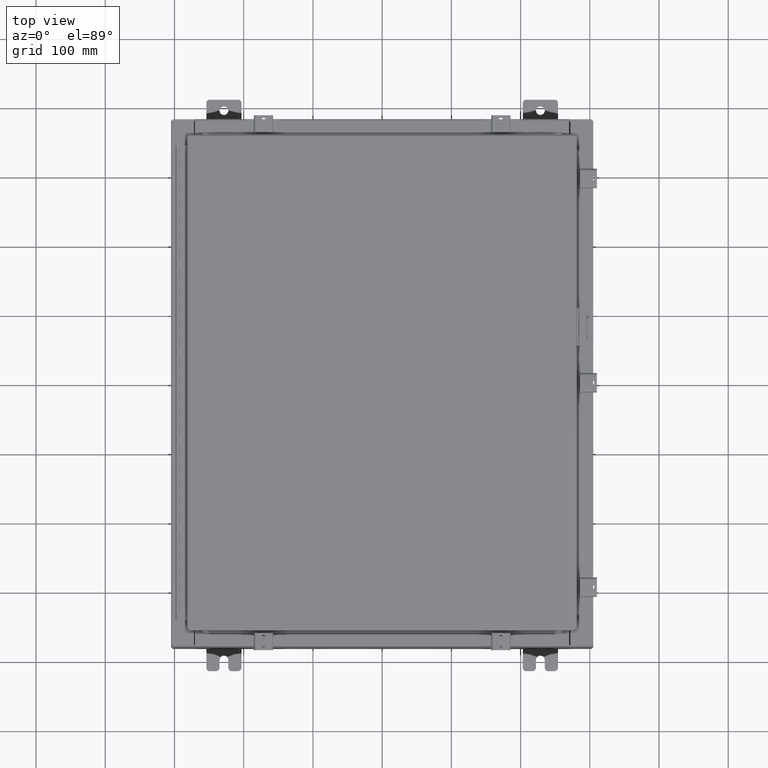
[diagram: clean part render]
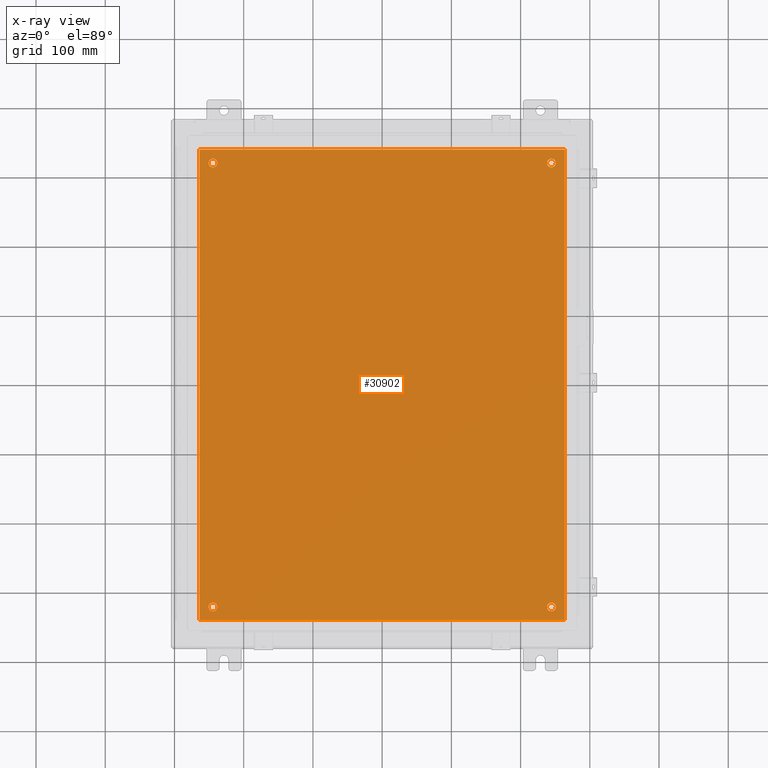
[diagram: x-ray — body ghosted, one internal face saturated and labeled with its STEP entity id]
A machine part, top view, then the same camera in x-ray: the body is ghosted and one INTERNAL B-rep face — a face not visible from any outside direction — is saturated and labeled: STEP entity #30902.
In plain terms, the highlighted planar face has unit normal (0, 0, -1).
Its self-contained STEP definition (entity closure, byte-faithful):
#769 = DIRECTION ( 'NONE',  ( -1.000000000000000000, 0.0000000000000000000, 0.0000000000000000000 ) ) ;
#984 = VERTEX_POINT ( 'NONE', #13189 ) ;
#1271 = PLANE ( 'NONE',  #29783 ) ;
#2091 = AXIS2_PLACEMENT_3D ( 'NONE', #26746, #9415, #29667 ) ;
#2192 = VERTEX_POINT ( 'NONE', #30154 ) ;
#2711 = CARTESIAN_POINT ( 'NONE',  ( 10.38300000000000100, -13.38299999999999700, -0.1040000000000009100 ) ) ;
#2748 = ORIENTED_EDGE ( 'NONE', *, *, #27197, .T. ) ;
#3415 = AXIS2_PLACEMENT_3D ( 'NONE', #6147, #26379, #9030 ) ;
#3819 = VECTOR ( 'NONE', #28766, 39.37007874015748100 ) ;
#3866 = AXIS2_PLACEMENT_3D ( 'NONE', #13264, #33515, #16166 ) ;
#4073 = VERTEX_POINT ( 'NONE', #13124 ) ;
#4169 = CARTESIAN_POINT ( 'NONE',  ( 0.0000000000000000000, 0.0000000000000000000, -0.1039999999999999800 ) ) ;
#4274 = FACE_BOUND ( 'NONE', #19895, .T. ) ;
#5562 = EDGE_CURVE ( 'NONE', #37059, #23015, #33004, .T. ) ;
#5786 = CARTESIAN_POINT ( 'NONE',  ( 9.875000000000007100, -12.62500000000000000, -0.1039999999999999800 ) ) ;
#6053 = VECTOR ( 'NONE', #8446, 39.37007874015748100 ) ;
#6147 = CARTESIAN_POINT ( 'NONE',  ( 9.625000000000007100, 12.62500000000000000, -0.1039999999999999800 ) ) ;
#6387 = CARTESIAN_POINT ( 'NONE',  ( -9.875000000000007100, 12.62500000000000000, -0.1039999999999999800 ) ) ;
#6684 = CIRCLE ( 'NONE', #29823, 0.2499999999999998100 ) ;
#6790 = VERTEX_POINT ( 'NONE', #5786 ) ;
#7066 = DIRECTION ( 'NONE',  ( 0.0000000000000000000, 0.0000000000000000000, -1.000000000000000000 ) ) ;
#7088 = EDGE_LOOP ( 'NONE', ( #30100, #15283 ) ) ;
#7328 = CARTESIAN_POINT ( 'NONE',  ( -9.375000000000007100, 12.62500000000000000, -0.1039999999999999800 ) ) ;
#7498 = CIRCLE ( 'NONE', #11922, 0.2500000000000008900 ) ;
#8062 = AXIS2_PLACEMENT_3D ( 'NONE', #9294, #29542, #12196 ) ;
#8112 = CIRCLE ( 'NONE', #8062, 0.2500000000000008900 ) ;
#8446 = DIRECTION ( 'NONE',  ( -1.000000000000000000, -0.0000000000000000000, -0.0000000000000000000 ) ) ;
#9030 = DIRECTION ( 'NONE',  ( -1.000000000000000000, 0.0000000000000000000, 0.0000000000000000000 ) ) ;
#9170 = CARTESIAN_POINT ( 'NONE',  ( -10.38300000000000100, -13.38299999999999900, -0.1040000000000009100 ) ) ;
#9294 = CARTESIAN_POINT ( 'NONE',  ( -9.625000000000007100, -12.62500000000000000, -0.1039999999999999800 ) ) ;
#9415 = DIRECTION ( 'NONE',  ( -0.0000000000000000000, -0.0000000000000000000, 1.000000000000000000 ) ) ;
#9637 = VERTEX_POINT ( 'NONE', #7328 ) ;
#10008 = ORIENTED_EDGE ( 'NONE', *, *, #5562, .F. ) ;
#10455 = DIRECTION ( 'NONE',  ( -0.0000000000000000000, -0.0000000000000000000, 1.000000000000000000 ) ) ;
#11486 = LINE ( 'NONE', #2711, #3819 ) ;
#11579 = AXIS2_PLACEMENT_3D ( 'NONE', #14432, #34700, #17361 ) ;
#11879 = CARTESIAN_POINT ( 'NONE',  ( 9.625000000000007100, 12.62500000000000000, -0.1039999999999999800 ) ) ;
#11922 = AXIS2_PLACEMENT_3D ( 'NONE', #35428, #18085, #769 ) ;
#11950 = FACE_BOUND ( 'NONE', #19812, .T. ) ;
#12196 = DIRECTION ( 'NONE',  ( -1.000000000000000000, 0.0000000000000000000, 0.0000000000000000000 ) ) ;
#12954 = LINE ( 'NONE', #18641, #19795 ) ;
#13050 = ORIENTED_EDGE ( 'NONE', *, *, #33992, .T. ) ;
#13068 = VERTEX_POINT ( 'NONE', #6387 ) ;
#13124 = CARTESIAN_POINT ( 'NONE',  ( 9.375000000000007100, -12.62500000000000000, -0.1039999999999999800 ) ) ;
#13189 = CARTESIAN_POINT ( 'NONE',  ( 9.875000000000007100, 12.62500000000000000, -0.1039999999999999800 ) ) ;
#13231 = EDGE_CURVE ( 'NONE', #23015, #13993, #12954, .T. ) ;
#13264 = CARTESIAN_POINT ( 'NONE',  ( -9.625000000000007100, -12.62500000000000000, -0.1039999999999999800 ) ) ;
#13993 = VERTEX_POINT ( 'NONE', #17301 ) ;
#14432 = CARTESIAN_POINT ( 'NONE',  ( -9.625000000000007100, 12.62500000000000000, -0.1039999999999999800 ) ) ;
#14688 = FACE_BOUND ( 'NONE', #36568, .T. ) ;
#14791 = DIRECTION ( 'NONE',  ( -1.000000000000000000, 0.0000000000000000000, 0.0000000000000000000 ) ) ;
#14908 = ORIENTED_EDGE ( 'NONE', *, *, #18909, .T. ) ;
#15283 = ORIENTED_EDGE ( 'NONE', *, *, #21936, .T. ) ;
#15937 = ORIENTED_EDGE ( 'NONE', *, *, #26579, .F. ) ;
#16052 = CARTESIAN_POINT ( 'NONE',  ( -10.38300000000000100, 13.38299999999999700, -0.1040000000000020100 ) ) ;
#16166 = DIRECTION ( 'NONE',  ( -1.000000000000000000, 0.0000000000000000000, 0.0000000000000000000 ) ) ;
#16393 = CARTESIAN_POINT ( 'NONE',  ( -10.38300000000000100, 13.38299999999999700, -0.1040000000000020100 ) ) ;
#17028 = EDGE_CURVE ( 'NONE', #9637, #13068, #28061, .T. ) ;
#17301 = CARTESIAN_POINT ( 'NONE',  ( 10.38300000000000100, -13.38299999999999700, -0.1040000000000009100 ) ) ;
#17361 = DIRECTION ( 'NONE',  ( -1.000000000000000000, 0.0000000000000000000, 0.0000000000000000000 ) ) ;
#18085 = DIRECTION ( 'NONE',  ( -0.0000000000000000000, -0.0000000000000000000, 1.000000000000000000 ) ) ;
#18277 = ORIENTED_EDGE ( 'NONE', *, *, #30973, .T. ) ;
#18641 = CARTESIAN_POINT ( 'NONE',  ( -10.50000000000000200, -13.38299999999999900, -0.1040000000000009100 ) ) ;
#18909 = EDGE_CURVE ( 'NONE', #984, #2192, #6684, .T. ) ;
#19795 = VECTOR ( 'NONE', #24467, 39.37007874015748100 ) ;
#19812 = EDGE_LOOP ( 'NONE', ( #13050, #18277 ) ) ;
#19866 = EDGE_CURVE ( 'NONE', #13068, #9637, #7498, .T. ) ;
#19895 = EDGE_LOOP ( 'NONE', ( #20702, #21021 ) ) ;
#20635 = ORIENTED_EDGE ( 'NONE', *, *, #13231, .F. ) ;
#20702 = ORIENTED_EDGE ( 'NONE', *, *, #17028, .T. ) ;
#20866 = EDGE_CURVE ( 'NONE', #13993, #32243, #11486, .T. ) ;
#21021 = ORIENTED_EDGE ( 'NONE', *, *, #19866, .T. ) ;
#21033 = CARTESIAN_POINT ( 'NONE',  ( -9.875000000000007100, -12.62500000000000000, -0.1039999999999999800 ) ) ;
#21936 = EDGE_CURVE ( 'NONE', #4073, #6790, #24435, .T. ) ;
#23015 = VERTEX_POINT ( 'NONE', #9170 ) ;
#23246 = CARTESIAN_POINT ( 'NONE',  ( -9.375000000000007100, -12.62500000000000000, -0.1039999999999999800 ) ) ;
#24189 = VERTEX_POINT ( 'NONE', #21033 ) ;
#24435 = CIRCLE ( 'NONE', #30151, 0.2499999999999998100 ) ;
#24467 = DIRECTION ( 'NONE',  ( 1.000000000000000000, -0.0000000000000000000, -0.0000000000000000000 ) ) ;
#25312 = VECTOR ( 'NONE', #28004, 39.37007874015748100 ) ;
#25793 = CARTESIAN_POINT ( 'NONE',  ( 10.50000000000000400, 13.38299999999999900, -0.1040000000000009100 ) ) ;
#26379 = DIRECTION ( 'NONE',  ( -0.0000000000000000000, -0.0000000000000000000, 1.000000000000000000 ) ) ;
#26579 = EDGE_CURVE ( 'NONE', #32243, #37059, #35936, .T. ) ;
#26580 = CIRCLE ( 'NONE', #2091, 0.2499999999999998100 ) ;
#26746 = CARTESIAN_POINT ( 'NONE',  ( 9.625000000000007100, -12.62500000000000000, -0.1039999999999999800 ) ) ;
#27197 = EDGE_CURVE ( 'NONE', #2192, #984, #37247, .T. ) ;
#27298 = DIRECTION ( 'NONE',  ( -1.000000000000000000, 0.0000000000000000000, -0.0000000000000000000 ) ) ;
#27340 = FACE_BOUND ( 'NONE', #7088, .T. ) ;
#27500 = ORIENTED_EDGE ( 'NONE', *, *, #20866, .F. ) ;
#27782 = CARTESIAN_POINT ( 'NONE',  ( 9.625000000000007100, -12.62500000000000000, -0.1039999999999999800 ) ) ;
#28004 = DIRECTION ( 'NONE',  ( 0.0000000000000000000, -1.000000000000000000, 0.0000000000000000000 ) ) ;
#28061 = CIRCLE ( 'NONE', #11579, 0.2500000000000008900 ) ;
#28191 = EDGE_CURVE ( 'NONE', #6790, #4073, #26580, .T. ) ;
#28766 = DIRECTION ( 'NONE',  ( 0.0000000000000000000, 1.000000000000000000, 0.0000000000000000000 ) ) ;
#29542 = DIRECTION ( 'NONE',  ( -0.0000000000000000000, -0.0000000000000000000, 1.000000000000000000 ) ) ;
#29667 = DIRECTION ( 'NONE',  ( -1.000000000000000000, 0.0000000000000000000, 0.0000000000000000000 ) ) ;
#29783 = AXIS2_PLACEMENT_3D ( 'NONE', #4169, #7066, #27298 ) ;
#29823 = AXIS2_PLACEMENT_3D ( 'NONE', #11879, #32131, #14791 ) ;
#30100 = ORIENTED_EDGE ( 'NONE', *, *, #28191, .T. ) ;
#30151 = AXIS2_PLACEMENT_3D ( 'NONE', #27782, #10455, #30696 ) ;
#30154 = CARTESIAN_POINT ( 'NONE',  ( 9.375000000000007100, 12.62500000000000000, -0.1039999999999999800 ) ) ;
#30439 = EDGE_LOOP ( 'NONE', ( #20635, #10008, #15937, #27500 ) ) ;
#30696 = DIRECTION ( 'NONE',  ( -1.000000000000000000, 0.0000000000000000000, 0.0000000000000000000 ) ) ;
#30902 = ADVANCED_FACE ( 'NONE', ( #11950, #27340, #14688, #4274, #34175 ), #1271, .T. ) ;
#30973 = EDGE_CURVE ( 'NONE', #24189, #35711, #31433, .T. ) ;
#31433 = CIRCLE ( 'NONE', #3866, 0.2500000000000008900 ) ;
#32131 = DIRECTION ( 'NONE',  ( -0.0000000000000000000, -0.0000000000000000000, 1.000000000000000000 ) ) ;
#32243 = VERTEX_POINT ( 'NONE', #34088 ) ;
#33004 = LINE ( 'NONE', #16393, #25312 ) ;
#33515 = DIRECTION ( 'NONE',  ( -0.0000000000000000000, -0.0000000000000000000, 1.000000000000000000 ) ) ;
#33992 = EDGE_CURVE ( 'NONE', #35711, #24189, #8112, .T. ) ;
#34088 = CARTESIAN_POINT ( 'NONE',  ( 10.38300000000000100, 13.38299999999999700, -0.1040000000000009100 ) ) ;
#34175 = FACE_OUTER_BOUND ( 'NONE', #30439, .T. ) ;
#34700 = DIRECTION ( 'NONE',  ( -0.0000000000000000000, -0.0000000000000000000, 1.000000000000000000 ) ) ;
#35428 = CARTESIAN_POINT ( 'NONE',  ( -9.625000000000007100, 12.62500000000000000, -0.1039999999999999800 ) ) ;
#35711 = VERTEX_POINT ( 'NONE', #23246 ) ;
#35936 = LINE ( 'NONE', #25793, #6053 ) ;
#36568 = EDGE_LOOP ( 'NONE', ( #14908, #2748 ) ) ;
#37059 = VERTEX_POINT ( 'NONE', #16052 ) ;
#37247 = CIRCLE ( 'NONE', #3415, 0.2499999999999998100 ) ;